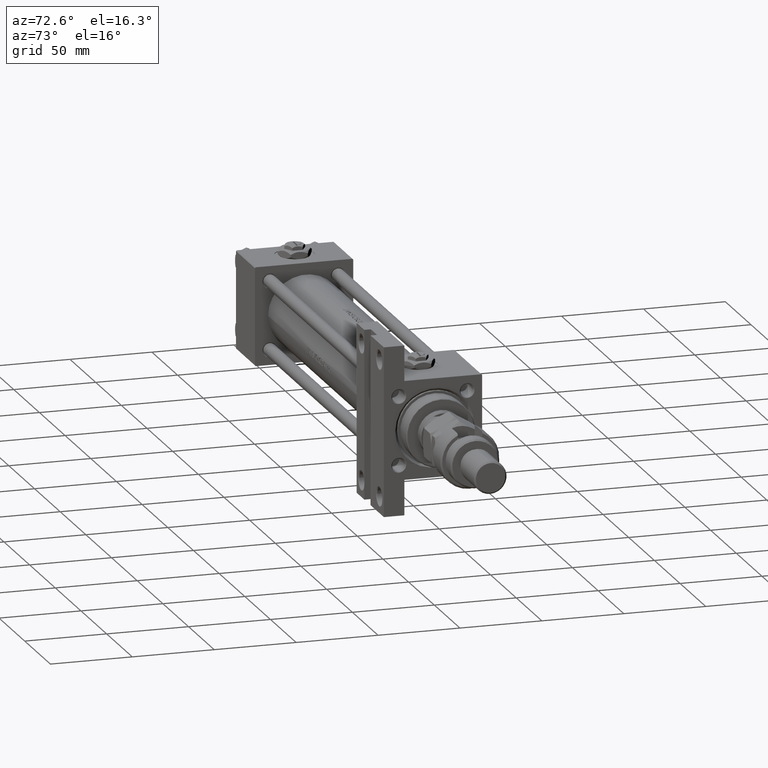
[diagram: clean part render]
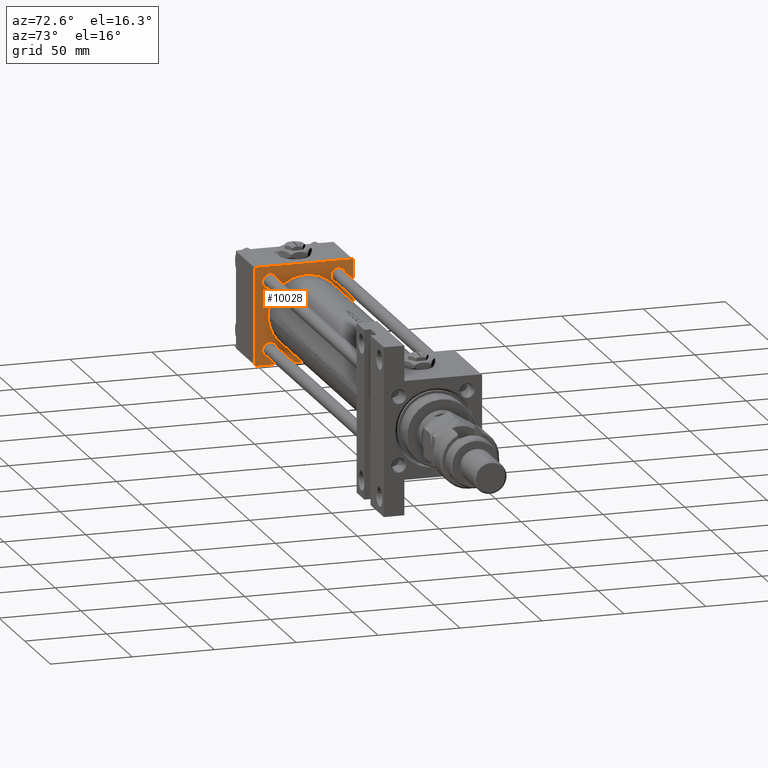
[diagram: same view with one face highlighted and labeled with its STEP entity id]
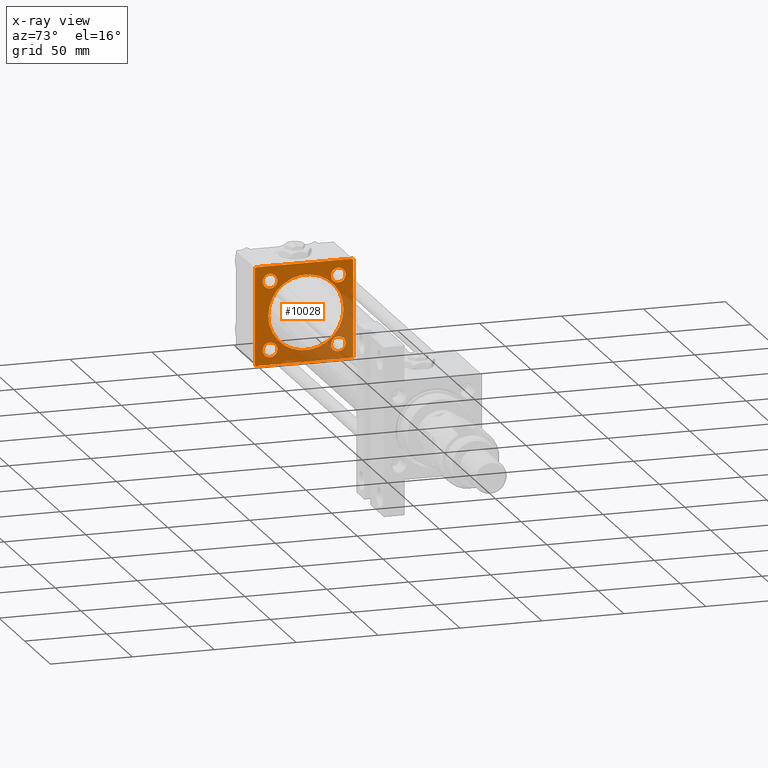
[diagram: x-ray of the same camera — body ghosted, the highlighted face saturated]
A machine part, auxiliary view. The second image highlights one B-rep face of the part: STEP entity #10028.
The next image is the same camera in x-ray: the body ghosted, the highlighted face saturated — about 30% of this face is hidden behind the body in this view.
In plain terms, the highlighted planar face has unit normal (-1, 0, -0).
Its self-contained STEP definition (entity closure, byte-faithful):
#195 = DIRECTION ( 'NONE',  ( -1.000000000000000000, 0.000000000000000000, -0.000000000000000000 ) ) ;
#381 = ORIENTED_EDGE ( 'NONE', *, *, #27477, .T. ) ;
#490 = DIRECTION ( 'NONE',  ( -0.000000000000000000, 0.7071067811865574537, 0.7071067811865376918 ) ) ;
#731 = EDGE_CURVE ( 'NONE', #33879, #44711, #25201, .T. ) ;
#1342 = CARTESIAN_POINT ( 'NONE',  ( 37.00000000000000000, 20.84999999999999787, 20.85000000000000142 ) ) ;
#1441 = CARTESIAN_POINT ( 'NONE',  ( 37.00000000000000711, -1.224646799147354686E-16, 1.000000000000000888 ) ) ;
#2235 = AXIS2_PLACEMENT_3D ( 'NONE', #21246, #17171, #33720 ) ;
#3181 = VERTEX_POINT ( 'NONE', #7859 ) ;
#3345 = ORIENTED_EDGE ( 'NONE', *, *, #13267, .F. ) ;
#3971 = EDGE_CURVE ( 'NONE', #11475, #7480, #25325, .T. ) ;
#4585 = DIRECTION ( 'NONE',  ( 0.000000000000000000, 0.000000000000000000, 1.000000000000000000 ) ) ;
#5694 = EDGE_CURVE ( 'NONE', #13778, #27111, #48764, .T. ) ;
#5780 = FACE_OUTER_BOUND ( 'NONE', #31443, .T. ) ;
#5974 = CARTESIAN_POINT ( 'NONE',  ( 37.00000000000000000, -20.84999999999999076, -20.85000000000000497 ) ) ;
#6046 = FACE_BOUND ( 'NONE', #19220, .T. ) ;
#6147 = EDGE_LOOP ( 'NONE', ( #15403, #7380 ) ) ;
#6155 = AXIS2_PLACEMENT_3D ( 'NONE', #30105, #9753, #26293 ) ;
#6575 = ORIENTED_EDGE ( 'NONE', *, *, #15835, .T. ) ;
#6666 = VECTOR ( 'NONE', #35771, 1000.000000000000000 ) ;
#7028 = DIRECTION ( 'NONE',  ( 0.000000000000000000, 0.000000000000000000, 1.000000000000000000 ) ) ;
#7033 = CARTESIAN_POINT ( 'NONE',  ( 37.00000000000000000, -30.00000000000000000, 29.99999999999999289 ) ) ;
#7077 = LINE ( 'NONE', #40156, #8527 ) ;
#7088 = ORIENTED_EDGE ( 'NONE', *, *, #19931, .T. ) ;
#7110 = ORIENTED_EDGE ( 'NONE', *, *, #16267, .T. ) ;
#7178 = LINE ( 'NONE', #51948, #8397 ) ;
#7237 = DIRECTION ( 'NONE',  ( 0.000000000000000000, 0.000000000000000000, 1.000000000000000000 ) ) ;
#7380 = ORIENTED_EDGE ( 'NONE', *, *, #53611, .T. ) ;
#7480 = VERTEX_POINT ( 'NONE', #7543 ) ;
#7543 = CARTESIAN_POINT ( 'NONE',  ( 37.00000000000000000, 20.84999999999999787, -16.34999999999996945 ) ) ;
#7664 = CARTESIAN_POINT ( 'NONE',  ( 37.00000000000000711, 2.694222958124176809E-15, -22.00000000000000000 ) ) ;
#7859 = CARTESIAN_POINT ( 'NONE',  ( 37.00000000000000000, -20.84999999999999076, -25.35000000000003695 ) ) ;
#8303 = DIRECTION ( 'NONE',  ( -1.000000000000000000, 0.000000000000000000, -0.000000000000000000 ) ) ;
#8397 = VECTOR ( 'NONE', #27780, 1000.000000000000000 ) ;
#8527 = VECTOR ( 'NONE', #27948, 1000.000000000000114 ) ;
#8573 = DIRECTION ( 'NONE',  ( 0.000000000000000000, 0.000000000000000000, 1.000000000000000000 ) ) ;
#8608 = ORIENTED_EDGE ( 'NONE', *, *, #25795, .T. ) ;
#9620 = VERTEX_POINT ( 'NONE', #27234 ) ;
#9753 = DIRECTION ( 'NONE',  ( 1.000000000000000000, -0.000000000000000000, 0.000000000000000000 ) ) ;
#9832 = DIRECTION ( 'NONE',  ( -1.000000000000000000, 0.000000000000000000, -0.000000000000000000 ) ) ;
#9970 = CIRCLE ( 'NONE', #21225, 23.00000000000000000 ) ;
#10028 = ADVANCED_FACE ( 'NONE', ( #10101, #35044, #31255, #26636, #6046, #5780 ), #17965, .F. ) ;
#10101 = FACE_BOUND ( 'NONE', #41760, .T. ) ;
#10959 = LINE ( 'NONE', #52474, #35790 ) ;
#10975 = CARTESIAN_POINT ( 'NONE',  ( 37.00000000000000000, 29.49999999999997868, -30.00000000000000000 ) ) ;
#11198 = VERTEX_POINT ( 'NONE', #53143 ) ;
#11475 = VERTEX_POINT ( 'NONE', #41596 ) ;
#11589 = CARTESIAN_POINT ( 'NONE',  ( 37.00000000000000000, 29.49999999999999289, 30.00000000000000000 ) ) ;
#13267 = EDGE_CURVE ( 'NONE', #13778, #53212, #17833, .T. ) ;
#13453 = CARTESIAN_POINT ( 'NONE',  ( 37.00000000000000000, 20.84999999999999787, 16.34999999999996945 ) ) ;
#13543 = CARTESIAN_POINT ( 'NONE',  ( 37.00000000000000000, -20.84999999999999076, 16.34999999999997300 ) ) ;
#13778 = VERTEX_POINT ( 'NONE', #28178 ) ;
#13870 = VERTEX_POINT ( 'NONE', #49876 ) ;
#14007 = EDGE_CURVE ( 'NONE', #7480, #11475, #27368, .T. ) ;
#14897 = DIRECTION ( 'NONE',  ( 0.000000000000000000, 0.000000000000000000, 1.000000000000000000 ) ) ;
#14997 = CARTESIAN_POINT ( 'NONE',  ( 37.00000000000000000, 29.49999999999999289, 30.00000000000000000 ) ) ;
#15251 = ORIENTED_EDGE ( 'NONE', *, *, #3971, .T. ) ;
#15290 = ORIENTED_EDGE ( 'NONE', *, *, #731, .T. ) ;
#15403 = ORIENTED_EDGE ( 'NONE', *, *, #34557, .T. ) ;
#15661 = CIRCLE ( 'NONE', #6155, 23.00000000000000000 ) ;
#15835 = EDGE_CURVE ( 'NONE', #20251, #19488, #53401, .T. ) ;
#15895 = CARTESIAN_POINT ( 'NONE',  ( 37.00000000000000000, 20.84999999999999787, -20.85000000000000142 ) ) ;
#16267 = EDGE_CURVE ( 'NONE', #27111, #24842, #7178, .T. ) ;
#17171 = DIRECTION ( 'NONE',  ( -1.000000000000000000, 0.000000000000000000, -0.000000000000000000 ) ) ;
#17230 = ORIENTED_EDGE ( 'NONE', *, *, #40913, .F. ) ;
#17545 = AXIS2_PLACEMENT_3D ( 'NONE', #15895, #195, #28374 ) ;
#17833 = LINE ( 'NONE', #34377, #28188 ) ;
#17965 = PLANE ( 'NONE',  #47143 ) ;
#18677 = ORIENTED_EDGE ( 'NONE', *, *, #26782, .T. ) ;
#18889 = AXIS2_PLACEMENT_3D ( 'NONE', #34410, #30623, #42560 ) ;
#19220 = EDGE_LOOP ( 'NONE', ( #17230, #34638 ) ) ;
#19291 = ORIENTED_EDGE ( 'NONE', *, *, #5694, .T. ) ;
#19488 = VERTEX_POINT ( 'NONE', #22465 ) ;
#19931 = EDGE_CURVE ( 'NONE', #44711, #33879, #30170, .T. ) ;
#20025 = AXIS2_PLACEMENT_3D ( 'NONE', #33252, #8303, #8573 ) ;
#20251 = VERTEX_POINT ( 'NONE', #40263 ) ;
#21225 = AXIS2_PLACEMENT_3D ( 'NONE', #1441, #38822, #34481 ) ;
#21246 = CARTESIAN_POINT ( 'NONE',  ( 37.00000000000000000, -20.84999999999999076, 20.85000000000000497 ) ) ;
#21861 = CARTESIAN_POINT ( 'NONE',  ( 37.00000000000000000, 29.99999999999999289, -29.50000000000000000 ) ) ;
#22179 = EDGE_CURVE ( 'NONE', #19488, #9620, #26677, .T. ) ;
#22465 = CARTESIAN_POINT ( 'NONE',  ( 37.00000000000000000, -30.00000000000000000, -29.50000000000001776 ) ) ;
#22729 = CARTESIAN_POINT ( 'NONE',  ( 37.00000000000000711, -1.224646799147354686E-16, 24.00000000000000000 ) ) ;
#24842 = VERTEX_POINT ( 'NONE', #44446 ) ;
#25201 = CIRCLE ( 'NONE', #20025, 4.500000000000031974 ) ;
#25325 = CIRCLE ( 'NONE', #17545, 4.500000000000031974 ) ;
#25795 = EDGE_CURVE ( 'NONE', #50081, #53212, #46023, .T. ) ;
#26293 = DIRECTION ( 'NONE',  ( 0.000000000000000000, 0.000000000000000000, 1.000000000000000000 ) ) ;
#26500 = DIRECTION ( 'NONE',  ( 0.000000000000000000, 0.000000000000000000, -1.000000000000000000 ) ) ;
#26636 = FACE_BOUND ( 'NONE', #41564, .T. ) ;
#26677 = LINE ( 'NONE', #43498, #30344 ) ;
#26759 = VERTEX_POINT ( 'NONE', #13543 ) ;
#26782 = EDGE_CURVE ( 'NONE', #3181, #11198, #50088, .T. ) ;
#27111 = VERTEX_POINT ( 'NONE', #14997 ) ;
#27234 = CARTESIAN_POINT ( 'NONE',  ( 37.00000000000000000, -29.50000000000000000, -30.00000000000000711 ) ) ;
#27368 = CIRCLE ( 'NONE', #38645, 4.500000000000031974 ) ;
#27477 = EDGE_CURVE ( 'NONE', #24842, #20251, #7077, .T. ) ;
#27780 = DIRECTION ( 'NONE',  ( 0.000000000000000000, -1.000000000000000000, -1.156482317317871725E-16 ) ) ;
#27948 = DIRECTION ( 'NONE',  ( -0.000000000000000000, -0.7071067811865474617, -0.7071067811865474617 ) ) ;
#28112 = DIRECTION ( 'NONE',  ( -1.000000000000000000, 0.000000000000000000, -0.000000000000000000 ) ) ;
#28178 = CARTESIAN_POINT ( 'NONE',  ( 37.00000000000000000, 29.99999999999999289, 29.50000000000000000 ) ) ;
#28188 = VECTOR ( 'NONE', #26500, 1000.000000000000000 ) ;
#28374 = DIRECTION ( 'NONE',  ( 0.000000000000000000, 0.000000000000000000, 1.000000000000000000 ) ) ;
#28373 = CARTESIAN_POINT ( 'NONE',  ( 37.00000000000000000, 20.84999999999999787, -20.85000000000000142 ) ) ;
#30105 = CARTESIAN_POINT ( 'NONE',  ( 37.00000000000000711, -1.224646799147354686E-16, 1.000000000000000888 ) ) ;
#30170 = CIRCLE ( 'NONE', #33638, 4.500000000000031974 ) ;
#30344 = VECTOR ( 'NONE', #43236, 1000.000000000000114 ) ;
#30623 = DIRECTION ( 'NONE',  ( -1.000000000000000000, 0.000000000000000000, -0.000000000000000000 ) ) ;
#30913 = VERTEX_POINT ( 'NONE', #7664 ) ;
#31255 = FACE_BOUND ( 'NONE', #6147, .T. ) ;
#31443 = EDGE_LOOP ( 'NONE', ( #39378, #8608, #3345, #19291, #7110, #381, #6575, #39636 ) ) ;
#32353 = VECTOR ( 'NONE', #44693, 1000.000000000000114 ) ;
#33252 = CARTESIAN_POINT ( 'NONE',  ( 37.00000000000000000, 20.84999999999999787, 20.85000000000000142 ) ) ;
#33514 = EDGE_LOOP ( 'NONE', ( #15251, #47092 ) ) ;
#33638 = AXIS2_PLACEMENT_3D ( 'NONE', #1342, #38188, #4585 ) ;
#33720 = DIRECTION ( 'NONE',  ( 0.000000000000000000, 0.000000000000000000, 1.000000000000000000 ) ) ;
#33879 = VERTEX_POINT ( 'NONE', #13453 ) ;
#34377 = CARTESIAN_POINT ( 'NONE',  ( 37.00000000000000000, 29.99999999999999289, 30.00000000000000000 ) ) ;
#34410 = CARTESIAN_POINT ( 'NONE',  ( 37.00000000000000000, -20.84999999999999076, -20.85000000000000497 ) ) ;
#34481 = DIRECTION ( 'NONE',  ( 0.000000000000000000, 0.000000000000000000, 1.000000000000000000 ) ) ;
#34557 = EDGE_CURVE ( 'NONE', #26759, #13870, #50226, .T. ) ;
#34638 = ORIENTED_EDGE ( 'NONE', *, *, #52532, .F. ) ;
#35044 = FACE_BOUND ( 'NONE', #33514, .T. ) ;
#35099 = CIRCLE ( 'NONE', #2235, 4.500000000000031974 ) ;
#35307 = CARTESIAN_POINT ( 'NONE',  ( 37.00000000000000000, 0.000000000000000000, 0.000000000000000000 ) ) ;
#35549 = VECTOR ( 'NONE', #490, 999.9999999999998863 ) ;
#35771 = DIRECTION ( 'NONE',  ( 0.000000000000000000, 0.000000000000000000, -1.000000000000000000 ) ) ;
#35790 = VECTOR ( 'NONE', #44049, 1000.000000000000000 ) ;
#38188 = DIRECTION ( 'NONE',  ( -1.000000000000000000, 0.000000000000000000, -0.000000000000000000 ) ) ;
#38645 = AXIS2_PLACEMENT_3D ( 'NONE', #28373, #28112, #7237 ) ;
#38822 = DIRECTION ( 'NONE',  ( 1.000000000000000000, -0.000000000000000000, 0.000000000000000000 ) ) ;
#39378 = ORIENTED_EDGE ( 'NONE', *, *, #45451, .F. ) ;
#39636 = ORIENTED_EDGE ( 'NONE', *, *, #22179, .T. ) ;
#40156 = CARTESIAN_POINT ( 'NONE',  ( 37.00000000000000000, -30.00000000000000000, 29.49999999999999289 ) ) ;
#40263 = CARTESIAN_POINT ( 'NONE',  ( 37.00000000000000000, -30.00000000000000000, 29.49999999999999289 ) ) ;
#40913 = EDGE_CURVE ( 'NONE', #52023, #30913, #15661, .T. ) ;
#41564 = EDGE_LOOP ( 'NONE', ( #15290, #7088 ) ) ;
#41596 = CARTESIAN_POINT ( 'NONE',  ( 37.00000000000000000, 20.84999999999999787, -25.35000000000003340 ) ) ;
#41760 = EDGE_LOOP ( 'NONE', ( #18677, #45919 ) ) ;
#42384 = CARTESIAN_POINT ( 'NONE',  ( 37.00000000000000000, 20.84999999999999787, 25.35000000000003340 ) ) ;
#42560 = DIRECTION ( 'NONE',  ( 0.000000000000000000, 0.000000000000000000, 1.000000000000000000 ) ) ;
#42775 = AXIS2_PLACEMENT_3D ( 'NONE', #5974, #44185, #7028 ) ;
#42929 = DIRECTION ( 'NONE',  ( -0.000000000000000000, 0.000000000000000000, 1.000000000000000000 ) ) ;
#43236 = DIRECTION ( 'NONE',  ( 0.000000000000000000, 0.7071067811865474617, -0.7071067811865474617 ) ) ;
#43498 = CARTESIAN_POINT ( 'NONE',  ( 37.00000000000000000, -29.50000000000001066, -30.00000000000000711 ) ) ;
#43938 = DIRECTION ( 'NONE',  ( -1.000000000000000000, 0.000000000000000000, -0.000000000000000000 ) ) ;
#44049 = DIRECTION ( 'NONE',  ( 0.000000000000000000, -1.000000000000000000, -1.156482317317871725E-16 ) ) ;
#44185 = DIRECTION ( 'NONE',  ( -1.000000000000000000, 0.000000000000000000, -0.000000000000000000 ) ) ;
#44446 = CARTESIAN_POINT ( 'NONE',  ( 37.00000000000000000, -29.49999999999998579, 29.99999999999999289 ) ) ;
#44520 = CIRCLE ( 'NONE', #42775, 4.500000000000031974 ) ;
#44693 = DIRECTION ( 'NONE',  ( 0.000000000000000000, -0.7071067811865474617, 0.7071067811865474617 ) ) ;
#44711 = VERTEX_POINT ( 'NONE', #42384 ) ;
#45451 = EDGE_CURVE ( 'NONE', #50081, #9620, #10959, .T. ) ;
#45919 = ORIENTED_EDGE ( 'NONE', *, *, #46084, .T. ) ;
#46023 = LINE ( 'NONE', #21861, #35549 ) ;
#46084 = EDGE_CURVE ( 'NONE', #11198, #3181, #44520, .T. ) ;
#47092 = ORIENTED_EDGE ( 'NONE', *, *, #14007, .T. ) ;
#47143 = AXIS2_PLACEMENT_3D ( 'NONE', #35307, #9832, #42929 ) ;
#47755 = CARTESIAN_POINT ( 'NONE',  ( 37.00000000000000000, -20.84999999999999076, 20.85000000000000497 ) ) ;
#48764 = LINE ( 'NONE', #11589, #32353 ) ;
#49366 = AXIS2_PLACEMENT_3D ( 'NONE', #47755, #43938, #14897 ) ;
#49876 = CARTESIAN_POINT ( 'NONE',  ( 37.00000000000000000, -20.84999999999999076, 25.35000000000003695 ) ) ;
#50081 = VERTEX_POINT ( 'NONE', #10975 ) ;
#50088 = CIRCLE ( 'NONE', #18889, 4.500000000000031974 ) ;
#50226 = CIRCLE ( 'NONE', #49366, 4.500000000000031974 ) ;
#51948 = CARTESIAN_POINT ( 'NONE',  ( 37.00000000000000000, 29.99999999999999289, 30.00000000000000000 ) ) ;
#52023 = VERTEX_POINT ( 'NONE', #22729 ) ;
#52474 = CARTESIAN_POINT ( 'NONE',  ( 37.00000000000000000, 29.99999999999999289, -30.00000000000000000 ) ) ;
#52532 = EDGE_CURVE ( 'NONE', #30913, #52023, #9970, .T. ) ;
#53143 = CARTESIAN_POINT ( 'NONE',  ( 37.00000000000000000, -20.84999999999999076, -16.34999999999997300 ) ) ;
#53212 = VERTEX_POINT ( 'NONE', #53601 ) ;
#53401 = LINE ( 'NONE', #7033, #6666 ) ;
#53601 = CARTESIAN_POINT ( 'NONE',  ( 37.00000000000000000, 29.99999999999999289, -29.50000000000000000 ) ) ;
#53611 = EDGE_CURVE ( 'NONE', #13870, #26759, #35099, .T. ) ;